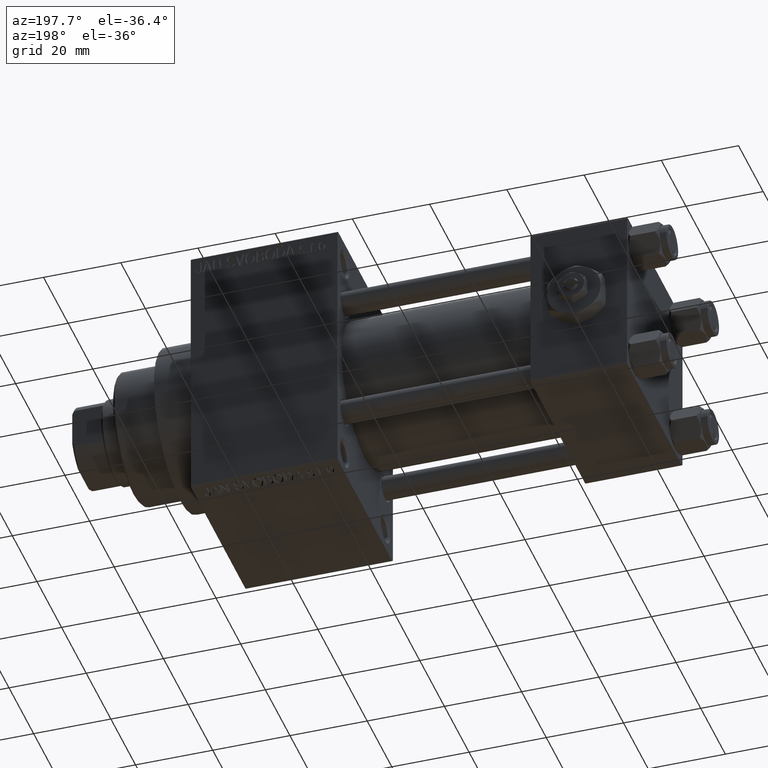
[diagram: clean part render]
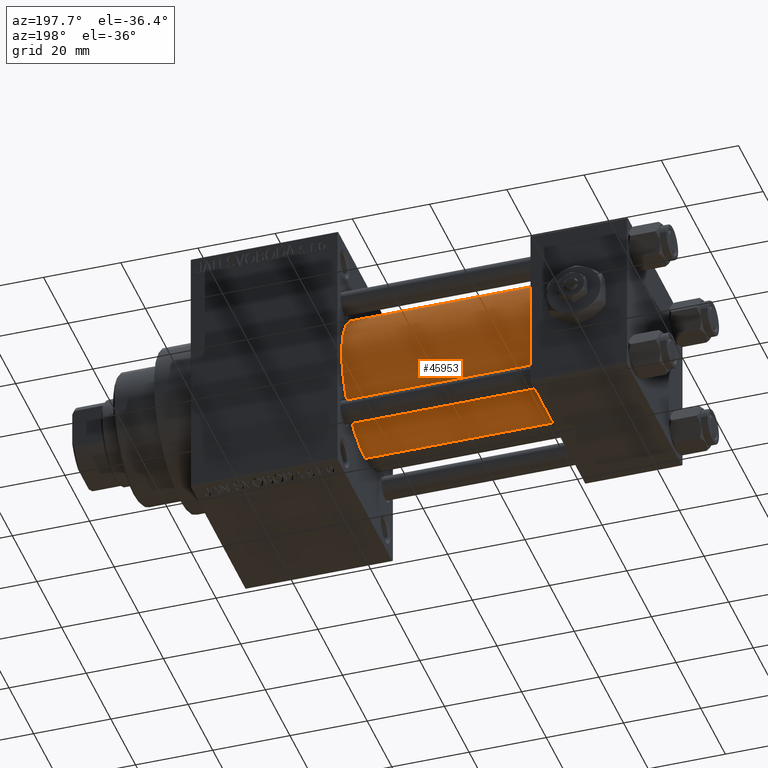
[diagram: same view with one face highlighted and labeled with its STEP entity id]
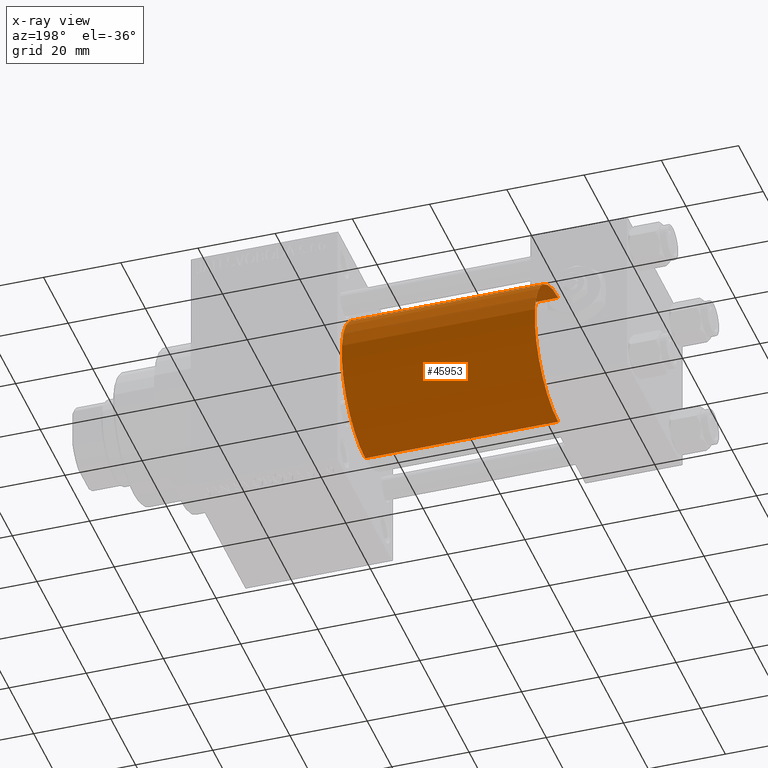
[diagram: x-ray of the same camera — body ghosted, the highlighted face saturated]
A machine part, auxiliary view. The second image highlights one B-rep face of the part: STEP entity #45953.
The next image is the same camera in x-ray: the body ghosted, the highlighted face saturated — about 1% of this face is hidden behind the body in this view.
In plain terms, the highlighted cylindrical surface (partial cylindrical patch) has radius 19 mm, axis along (-1, -0, -0).
Its self-contained STEP definition (entity closure, byte-faithful):
#1169 = CARTESIAN_POINT ( 'NONE',  ( 75.00000000000001421, -2.602085213965210642E-15, 0.000000000000000000 ) ) ;
#1477 = VERTEX_POINT ( 'NONE', #34388 ) ;
#2470 = VERTEX_POINT ( 'NONE', #40496 ) ;
#3092 = CARTESIAN_POINT ( 'NONE',  ( 25.00000000000000000, -2.602085213965210642E-15, 0.000000000000000000 ) ) ;
#4473 = EDGE_LOOP ( 'NONE', ( #45075, #28075, #9331, #20725 ) ) ;
#5486 = EDGE_CURVE ( 'NONE', #30441, #31257, #29798, .T. ) ;
#5968 = CYLINDRICAL_SURFACE ( 'NONE', #46026, 19.00000000000000000 ) ;
#6794 = EDGE_CURVE ( 'NONE', #2470, #31257, #10185, .T. ) ;
#7041 = DIRECTION ( 'NONE',  ( 0.000000000000000000, 0.000000000000000000, 1.000000000000000000 ) ) ;
#7085 = DIRECTION ( 'NONE',  ( -1.000000000000000000, -0.000000000000000000, -0.000000000000000000 ) ) ;
#7088 = CARTESIAN_POINT ( 'NONE',  ( 25.00000000000000000, -2.602085213965210642E-15, 19.00000000000000000 ) ) ;
#9020 = CARTESIAN_POINT ( 'NONE',  ( 75.00000000000001421, -2.602085213965210642E-15, 19.00000000000000000 ) ) ;
#9331 = ORIENTED_EDGE ( 'NONE', *, *, #6794, .T. ) ;
#10141 = VECTOR ( 'NONE', #7085, 1000.000000000000000 ) ;
#10185 = CIRCLE ( 'NONE', #10959, 19.00000000000000000 ) ;
#10959 = AXIS2_PLACEMENT_3D ( 'NONE', #3092, #48300, #7041 ) ;
#13612 = DIRECTION ( 'NONE',  ( -1.000000000000000000, -0.000000000000000000, -0.000000000000000000 ) ) ;
#15747 = EDGE_CURVE ( 'NONE', #1477, #30441, #30086, .T. ) ;
#15796 = CARTESIAN_POINT ( 'NONE',  ( 75.00000000000001421, -2.752562955852396712E-16, -19.00000000000000000 ) ) ;
#16044 = DIRECTION ( 'NONE',  ( -1.000000000000000000, -0.000000000000000000, -0.000000000000000000 ) ) ;
#20180 = DIRECTION ( 'NONE',  ( 0.000000000000000000, 0.000000000000000000, -1.000000000000000000 ) ) ;
#20725 = ORIENTED_EDGE ( 'NONE', *, *, #5486, .F. ) ;
#21421 = AXIS2_PLACEMENT_3D ( 'NONE', #1169, #41271, #20180 ) ;
#23692 = LINE ( 'NONE', #15796, #30989 ) ;
#28075 = ORIENTED_EDGE ( 'NONE', *, *, #44855, .T. ) ;
#28673 = DIRECTION ( 'NONE',  ( 0.000000000000000000, 0.000000000000000000, 1.000000000000000000 ) ) ;
#29798 = LINE ( 'NONE', #40937, #10141 ) ;
#30086 = CIRCLE ( 'NONE', #21421, 19.00000000000000000 ) ;
#30441 = VERTEX_POINT ( 'NONE', #9020 ) ;
#30989 = VECTOR ( 'NONE', #16044, 1000.000000000000000 ) ;
#31257 = VERTEX_POINT ( 'NONE', #7088 ) ;
#34388 = CARTESIAN_POINT ( 'NONE',  ( 75.00000000000001421, -2.752562955852396712E-16, -19.00000000000000000 ) ) ;
#39569 = FACE_OUTER_BOUND ( 'NONE', #4473, .T. ) ;
#40496 = CARTESIAN_POINT ( 'NONE',  ( 25.00000000000000000, -2.752562955852396712E-16, -19.00000000000000000 ) ) ;
#40937 = CARTESIAN_POINT ( 'NONE',  ( 75.00000000000001421, -2.602085213965210642E-15, 19.00000000000000000 ) ) ;
#41271 = DIRECTION ( 'NONE',  ( 1.000000000000000000, 0.000000000000000000, 0.000000000000000000 ) ) ;
#44855 = EDGE_CURVE ( 'NONE', #1477, #2470, #23692, .T. ) ;
#45075 = ORIENTED_EDGE ( 'NONE', *, *, #15747, .F. ) ;
#45953 = ADVANCED_FACE ( 'NONE', ( #39569 ), #5968, .T. ) ;
#46026 = AXIS2_PLACEMENT_3D ( 'NONE', #47710, #13612, #28673 ) ;
#47710 = CARTESIAN_POINT ( 'NONE',  ( 75.00000000000001421, -2.602085213965210642E-15, 0.000000000000000000 ) ) ;
#48300 = DIRECTION ( 'NONE',  ( 1.000000000000000000, -0.000000000000000000, 0.000000000000000000 ) ) ;